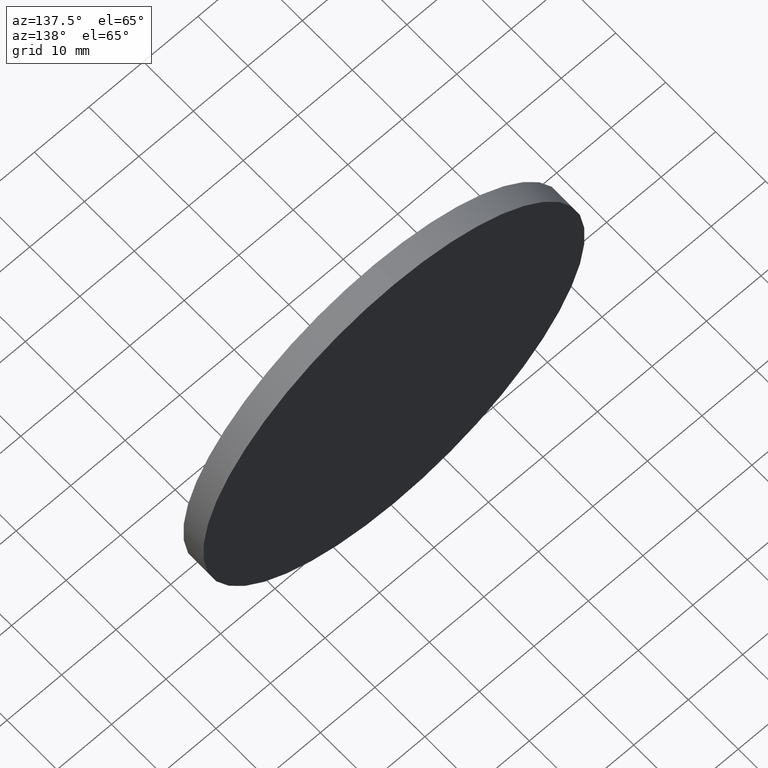
[diagram: clean part render]
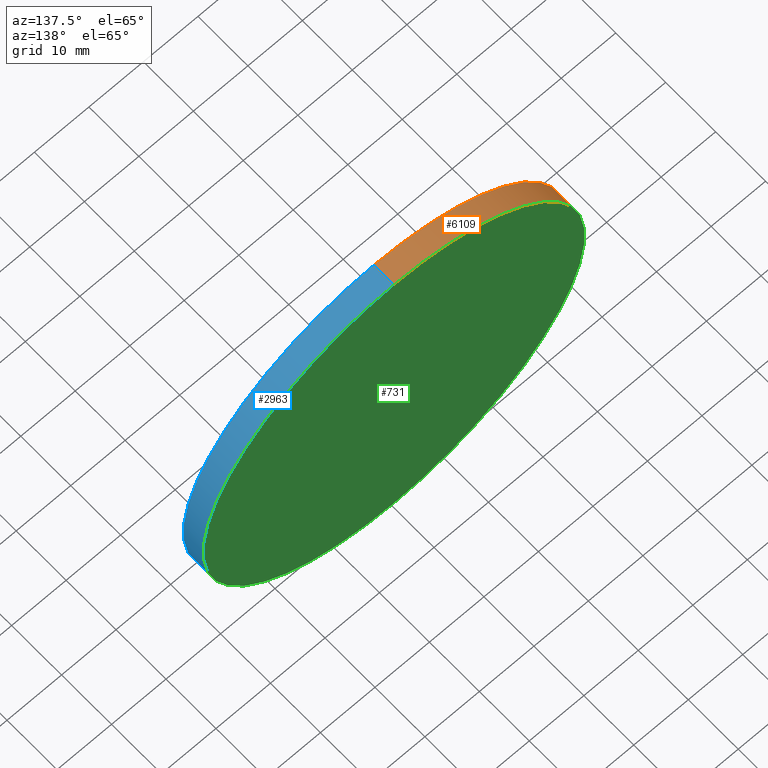
[diagram: same view with three faces highlighted in distinct colors, each labeled with its STEP entity id]
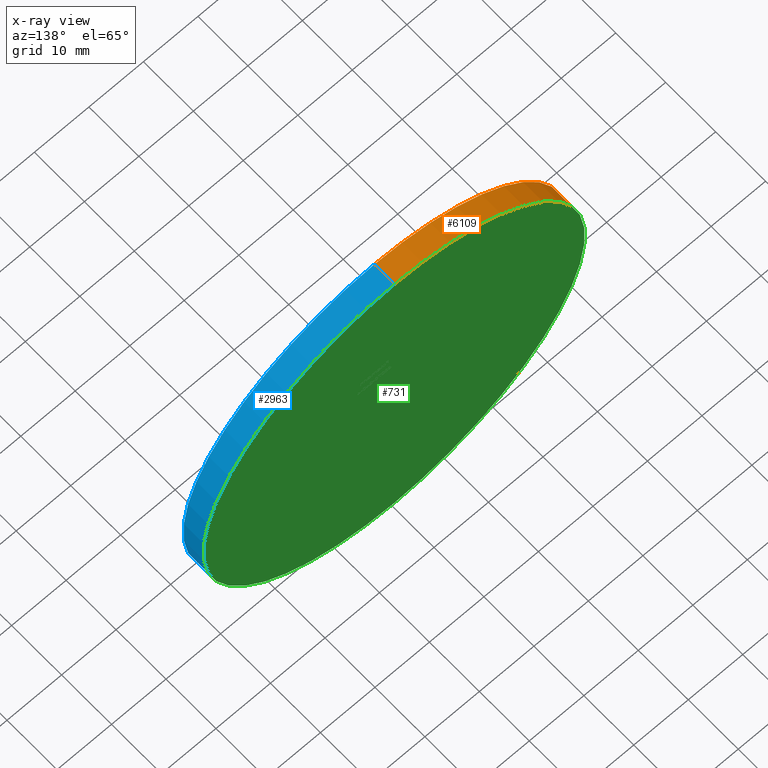
[diagram: x-ray of the same camera — body ghosted, the three highlighted faces saturated]
A machine part, auxiliary view with three faces highlighted in distinct colors.
The next image is the same camera in x-ray (body ghosted, the three faces saturated) — at least one of them is partly hidden behind the body in this view.
Their STEP definitions:

[orange] entity #6109 — the highlighted cylindrical surface (partial cylindrical patch) has radius 35 mm, axis along (-0, -1, -0).
#173 = ORIENTED_EDGE ( 'NONE', *, *, #6772, .T. ) ;
#266 = CARTESIAN_POINT ( 'NONE',  ( 0.000000000000000000, -2.000000000000000000, -35.00000000000000711 ) ) ;
#1059 = CARTESIAN_POINT ( 'NONE',  ( 0.000000000000000000, -2.000000000000000000, 0.000000000000000000 ) ) ;
#1453 = FACE_OUTER_BOUND ( 'NONE', #9163, .T. ) ;
#1456 = AXIS2_PLACEMENT_3D ( 'NONE', #10734, #5443, #3344 ) ;
#1620 = CYLINDRICAL_SURFACE ( 'NONE', #1456, 35.00000000000000711 ) ;
#2417 = EDGE_CURVE ( 'NONE', #7902, #7730, #3125, .T. ) ;
#3125 = LINE ( 'NONE', #12153, #13013 ) ;
#3344 = DIRECTION ( 'NONE',  ( 0.000000000000000000, 0.000000000000000000, -1.000000000000000000 ) ) ;
#3602 = DIRECTION ( 'NONE',  ( -0.000000000000000000, -1.000000000000000000, -0.000000000000000000 ) ) ;
#3664 = VERTEX_POINT ( 'NONE', #7679 ) ;
#3919 = DIRECTION ( 'NONE',  ( 0.000000000000000000, 0.000000000000000000, 1.000000000000000000 ) ) ;
#4730 = CIRCLE ( 'NONE', #9404, 35.00000000000000711 ) ;
#4929 = CARTESIAN_POINT ( 'NONE',  ( 0.000000000000000000, 2.000000000000000000, 0.000000000000000000 ) ) ;
#5065 = DIRECTION ( 'NONE',  ( 0.000000000000000000, 0.000000000000000000, 1.000000000000000000 ) ) ;
#5190 = EDGE_CURVE ( 'NONE', #3664, #5577, #7991, .T. ) ;
#5443 = DIRECTION ( 'NONE',  ( -0.000000000000000000, -1.000000000000000000, -0.000000000000000000 ) ) ;
#5577 = VERTEX_POINT ( 'NONE', #266 ) ;
#5888 = VECTOR ( 'NONE', #3602, 1000.000000000000000 ) ;
#5918 = DIRECTION ( 'NONE',  ( -0.000000000000000000, -1.000000000000000000, -0.000000000000000000 ) ) ;
#6109 = ADVANCED_FACE ( 'NONE', ( #1453 ), #1620, .T. ) ;
#6422 = ORIENTED_EDGE ( 'NONE', *, *, #2417, .F. ) ;
#6772 = EDGE_CURVE ( 'NONE', #5577, #7730, #4730, .T. ) ;
#7679 = CARTESIAN_POINT ( 'NONE',  ( 0.000000000000000000, 2.000000000000000000, -35.00000000000000711 ) ) ;
#7684 = CARTESIAN_POINT ( 'NONE',  ( 4.286263797015737285E-15, -2.000000000000000000, 35.00000000000000711 ) ) ;
#7730 = VERTEX_POINT ( 'NONE', #7684 ) ;
#7902 = VERTEX_POINT ( 'NONE', #7915 ) ;
#7915 = CARTESIAN_POINT ( 'NONE',  ( 4.286263797015737285E-15, 2.000000000000000000, 35.00000000000000711 ) ) ;
#7991 = LINE ( 'NONE', #8690, #5888 ) ;
#8057 = DIRECTION ( 'NONE',  ( 0.000000000000000000, 1.000000000000000000, 0.000000000000000000 ) ) ;
#8690 = CARTESIAN_POINT ( 'NONE',  ( 0.000000000000000000, 2.000000000000000000, -35.00000000000000711 ) ) ;
#9163 = EDGE_LOOP ( 'NONE', ( #6422, #12191, #9934, #173 ) ) ;
#9279 = DIRECTION ( 'NONE',  ( 0.000000000000000000, 1.000000000000000000, 0.000000000000000000 ) ) ;
#9404 = AXIS2_PLACEMENT_3D ( 'NONE', #1059, #9279, #5065 ) ;
#9934 = ORIENTED_EDGE ( 'NONE', *, *, #5190, .T. ) ;
#10734 = CARTESIAN_POINT ( 'NONE',  ( 0.000000000000000000, 2.000000000000000000, 0.000000000000000000 ) ) ;
#11323 = AXIS2_PLACEMENT_3D ( 'NONE', #4929, #8057, #3919 ) ;
#11754 = EDGE_CURVE ( 'NONE', #3664, #7902, #12595, .T. ) ;
#12153 = CARTESIAN_POINT ( 'NONE',  ( 4.286263797015737285E-15, 2.000000000000000000, 35.00000000000000711 ) ) ;
#12191 = ORIENTED_EDGE ( 'NONE', *, *, #11754, .F. ) ;
#12595 = CIRCLE ( 'NONE', #11323, 35.00000000000000711 ) ;
#13013 = VECTOR ( 'NONE', #5918, 1000.000000000000000 ) ;

[blue] entity #2963 — the highlighted cylindrical surface (partial cylindrical patch) has radius 35 mm, axis along (-0, -1, -0).
#30 = DIRECTION ( 'NONE',  ( 0.000000000000000000, 0.000000000000000000, 1.000000000000000000 ) ) ;
#266 = CARTESIAN_POINT ( 'NONE',  ( 0.000000000000000000, -2.000000000000000000, -35.00000000000000711 ) ) ;
#315 = ORIENTED_EDGE ( 'NONE', *, *, #4814, .F. ) ;
#1707 = AXIS2_PLACEMENT_3D ( 'NONE', #12044, #7930, #7972 ) ;
#2417 = EDGE_CURVE ( 'NONE', #7902, #7730, #3125, .T. ) ;
#2849 = ORIENTED_EDGE ( 'NONE', *, *, #2417, .T. ) ;
#2963 = ADVANCED_FACE ( 'NONE', ( #3456 ), #10753, .T. ) ;
#3125 = LINE ( 'NONE', #12153, #13013 ) ;
#3307 = AXIS2_PLACEMENT_3D ( 'NONE', #10587, #6427, #7520 ) ;
#3456 = FACE_OUTER_BOUND ( 'NONE', #13255, .T. ) ;
#3602 = DIRECTION ( 'NONE',  ( -0.000000000000000000, -1.000000000000000000, -0.000000000000000000 ) ) ;
#3664 = VERTEX_POINT ( 'NONE', #7679 ) ;
#4814 = EDGE_CURVE ( 'NONE', #7902, #3664, #11699, .T. ) ;
#4884 = AXIS2_PLACEMENT_3D ( 'NONE', #11475, #5273, #30 ) ;
#5190 = EDGE_CURVE ( 'NONE', #3664, #5577, #7991, .T. ) ;
#5273 = DIRECTION ( 'NONE',  ( 0.000000000000000000, 1.000000000000000000, 0.000000000000000000 ) ) ;
#5577 = VERTEX_POINT ( 'NONE', #266 ) ;
#5888 = VECTOR ( 'NONE', #3602, 1000.000000000000000 ) ;
#5918 = DIRECTION ( 'NONE',  ( -0.000000000000000000, -1.000000000000000000, -0.000000000000000000 ) ) ;
#6427 = DIRECTION ( 'NONE',  ( 0.000000000000000000, 1.000000000000000000, 0.000000000000000000 ) ) ;
#7520 = DIRECTION ( 'NONE',  ( 0.000000000000000000, 0.000000000000000000, 1.000000000000000000 ) ) ;
#7679 = CARTESIAN_POINT ( 'NONE',  ( 0.000000000000000000, 2.000000000000000000, -35.00000000000000711 ) ) ;
#7684 = CARTESIAN_POINT ( 'NONE',  ( 4.286263797015737285E-15, -2.000000000000000000, 35.00000000000000711 ) ) ;
#7730 = VERTEX_POINT ( 'NONE', #7684 ) ;
#7902 = VERTEX_POINT ( 'NONE', #7915 ) ;
#7915 = CARTESIAN_POINT ( 'NONE',  ( 4.286263797015737285E-15, 2.000000000000000000, 35.00000000000000711 ) ) ;
#7930 = DIRECTION ( 'NONE',  ( -0.000000000000000000, -1.000000000000000000, -0.000000000000000000 ) ) ;
#7972 = DIRECTION ( 'NONE',  ( 0.000000000000000000, 0.000000000000000000, -1.000000000000000000 ) ) ;
#7991 = LINE ( 'NONE', #8690, #5888 ) ;
#8690 = CARTESIAN_POINT ( 'NONE',  ( 0.000000000000000000, 2.000000000000000000, -35.00000000000000711 ) ) ;
#10130 = EDGE_CURVE ( 'NONE', #7730, #5577, #13258, .T. ) ;
#10587 = CARTESIAN_POINT ( 'NONE',  ( 0.000000000000000000, -2.000000000000000000, 0.000000000000000000 ) ) ;
#10732 = ORIENTED_EDGE ( 'NONE', *, *, #10130, .T. ) ;
#10753 = CYLINDRICAL_SURFACE ( 'NONE', #1707, 35.00000000000000711 ) ;
#11475 = CARTESIAN_POINT ( 'NONE',  ( 0.000000000000000000, 2.000000000000000000, 0.000000000000000000 ) ) ;
#11699 = CIRCLE ( 'NONE', #4884, 35.00000000000000711 ) ;
#12044 = CARTESIAN_POINT ( 'NONE',  ( 0.000000000000000000, 2.000000000000000000, 0.000000000000000000 ) ) ;
#12115 = ORIENTED_EDGE ( 'NONE', *, *, #5190, .F. ) ;
#12153 = CARTESIAN_POINT ( 'NONE',  ( 4.286263797015737285E-15, 2.000000000000000000, 35.00000000000000711 ) ) ;
#13013 = VECTOR ( 'NONE', #5918, 1000.000000000000000 ) ;
#13255 = EDGE_LOOP ( 'NONE', ( #315, #2849, #10732, #12115 ) ) ;
#13258 = CIRCLE ( 'NONE', #3307, 35.00000000000000711 ) ;

[green] entity #731 — the highlighted planar face has unit normal (0, 1, 0).
#30 = DIRECTION ( 'NONE',  ( 0.000000000000000000, 0.000000000000000000, 1.000000000000000000 ) ) ;
#731 = ADVANCED_FACE ( 'NONE', ( #4305 ), #11497, .T. ) ;
#1068 = CARTESIAN_POINT ( 'NONE',  ( 0.000000000000000000, 2.000000000000000000, 0.000000000000000000 ) ) ;
#1249 = AXIS2_PLACEMENT_3D ( 'NONE', #1068, #8383, #3191 ) ;
#3191 = DIRECTION ( 'NONE',  ( 0.000000000000000000, -0.000000000000000000, 1.000000000000000000 ) ) ;
#3664 = VERTEX_POINT ( 'NONE', #7679 ) ;
#3919 = DIRECTION ( 'NONE',  ( 0.000000000000000000, 0.000000000000000000, 1.000000000000000000 ) ) ;
#4010 = ORIENTED_EDGE ( 'NONE', *, *, #4814, .T. ) ;
#4305 = FACE_OUTER_BOUND ( 'NONE', #5520, .T. ) ;
#4664 = ORIENTED_EDGE ( 'NONE', *, *, #11754, .T. ) ;
#4814 = EDGE_CURVE ( 'NONE', #7902, #3664, #11699, .T. ) ;
#4884 = AXIS2_PLACEMENT_3D ( 'NONE', #11475, #5273, #30 ) ;
#4929 = CARTESIAN_POINT ( 'NONE',  ( 0.000000000000000000, 2.000000000000000000, 0.000000000000000000 ) ) ;
#5273 = DIRECTION ( 'NONE',  ( 0.000000000000000000, 1.000000000000000000, 0.000000000000000000 ) ) ;
#5520 = EDGE_LOOP ( 'NONE', ( #4664, #4010 ) ) ;
#7679 = CARTESIAN_POINT ( 'NONE',  ( 0.000000000000000000, 2.000000000000000000, -35.00000000000000711 ) ) ;
#7902 = VERTEX_POINT ( 'NONE', #7915 ) ;
#7915 = CARTESIAN_POINT ( 'NONE',  ( 4.286263797015737285E-15, 2.000000000000000000, 35.00000000000000711 ) ) ;
#8057 = DIRECTION ( 'NONE',  ( 0.000000000000000000, 1.000000000000000000, 0.000000000000000000 ) ) ;
#8383 = DIRECTION ( 'NONE',  ( 0.000000000000000000, 1.000000000000000000, 0.000000000000000000 ) ) ;
#11323 = AXIS2_PLACEMENT_3D ( 'NONE', #4929, #8057, #3919 ) ;
#11475 = CARTESIAN_POINT ( 'NONE',  ( 0.000000000000000000, 2.000000000000000000, 0.000000000000000000 ) ) ;
#11497 = PLANE ( 'NONE',  #1249 ) ;
#11699 = CIRCLE ( 'NONE', #4884, 35.00000000000000711 ) ;
#11754 = EDGE_CURVE ( 'NONE', #3664, #7902, #12595, .T. ) ;
#12595 = CIRCLE ( 'NONE', #11323, 35.00000000000000711 ) ;